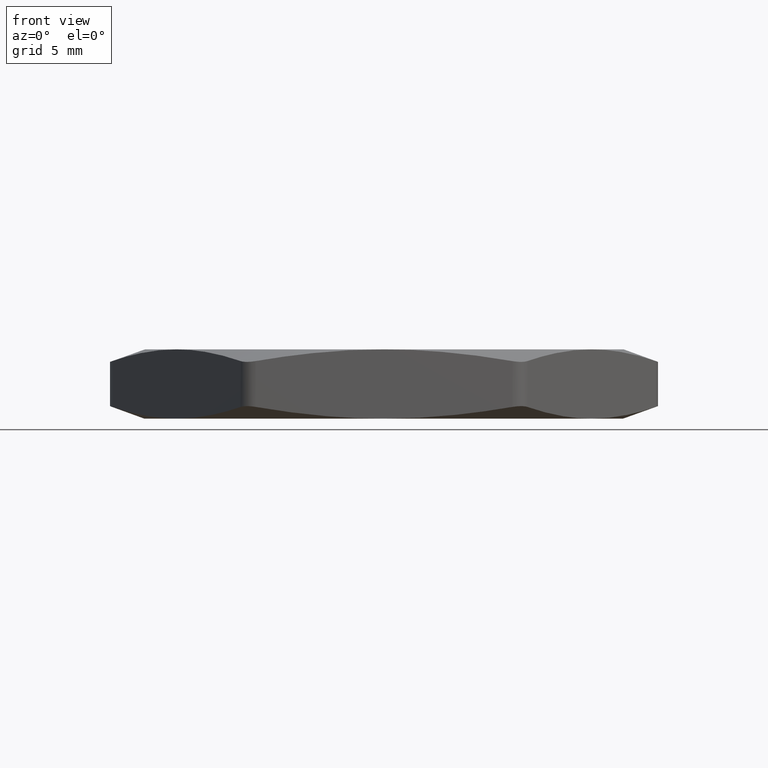
[diagram: clean part render]
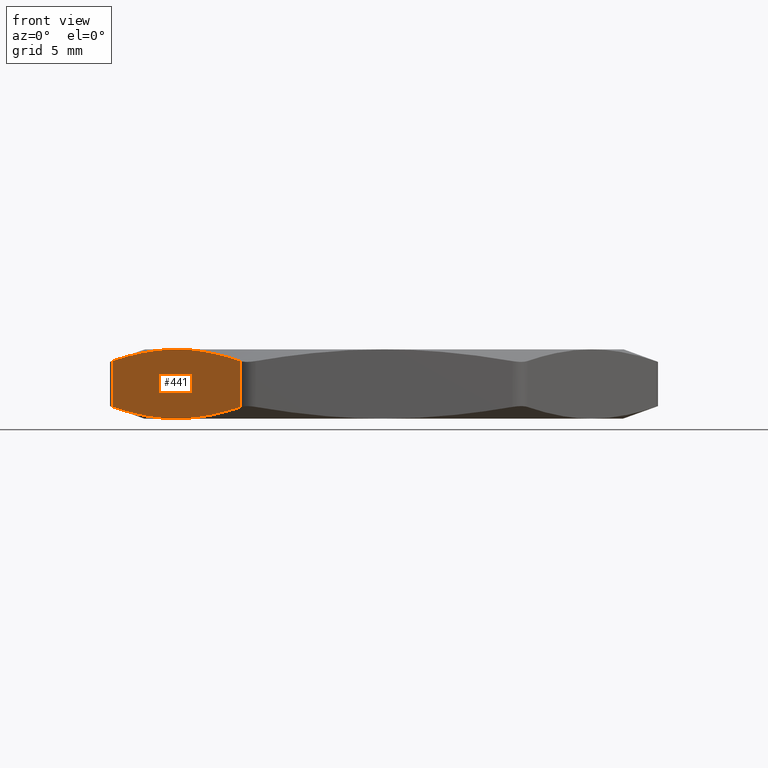
[diagram: same view with one face highlighted and labeled with its STEP entity id]
A machine part, front view. The second image highlights one B-rep face of the part: STEP entity #441.
In plain terms, the highlighted planar face has unit normal (0.866, 0.5, 0).
Its self-contained STEP definition (entity closure, byte-faithful):
#170 = VERTEX_POINT ( 'NONE', #2398 ) ;
#171 = VERTEX_POINT ( 'NONE', #2397 ) ;
#172 = ORIENTED_EDGE ( 'NONE', *, *, #173, .F. ) ;
#173 = EDGE_CURVE ( 'NONE', #174, #171, #2456, .T. ) ;
#174 = VERTEX_POINT ( 'NONE', #2455 ) ;
#186 = VERTEX_POINT ( 'NONE', #478 ) ;
#426 = EDGE_CURVE ( 'NONE', #170, #186, #940, .T. ) ;
#431 = ORIENTED_EDGE ( 'NONE', *, *, #432, .F. ) ;
#432 = EDGE_CURVE ( 'NONE', #433, #434, #930, .T. ) ;
#433 = VERTEX_POINT ( 'NONE', #976 ) ;
#434 = VERTEX_POINT ( 'NONE', #975 ) ;
#435 = ORIENTED_EDGE ( 'NONE', *, *, #436, .T. ) ;
#436 = EDGE_CURVE ( 'NONE', #433, #171, #974, .T. ) ;
#441 = ADVANCED_FACE ( 'NONE', ( #962 ), #965, .F. ) ;
#442 = EDGE_LOOP ( 'NONE', ( #431, #435, #172, #444, #446, #447 ) ) ;
#444 = ORIENTED_EDGE ( 'NONE', *, *, #445, .F. ) ;
#445 = EDGE_CURVE ( 'NONE', #170, #174, #952, .T. ) ;
#446 = ORIENTED_EDGE ( 'NONE', *, *, #426, .T. ) ;
#447 = ORIENTED_EDGE ( 'NONE', *, *, #450, .F. ) ;
#450 = EDGE_CURVE ( 'NONE', #434, #186, #995, .T. ) ;
#478 = CARTESIAN_POINT ( 'NONE',  ( -0.4705404693895449700, -0.01499999999999981700, 0.02030207602509548000 ) ) ;
#921 = CARTESIAN_POINT ( 'NONE',  ( -0.3408772214340414800, -0.2395833333333332600, -6.782933128800184000E-017 ) ) ;
#922 = CARTESIAN_POINT ( 'NONE',  ( -0.3223539002975411800, -0.2716666666666666100, 0.001834672312144915700 ) ) ;
#923 = CARTESIAN_POINT ( 'NONE',  ( -0.2853072580245401600, -0.3358333333333333700, 0.008810984912747467000 ) ) ;
#924 = CARTESIAN_POINT ( 'NONE',  ( -0.2667839368880397000, -0.3679166666666666700, 0.01393562675250454300 ) ) ;
#925 = CARTESIAN_POINT ( 'NONE',  ( -0.2482606157515391500, -0.3999999999999999700, 0.02030207602509548300 ) ) ;
#930 = B_SPLINE_CURVE_WITH_KNOTS ( 'NONE', 3,
 ( #925, #924, #923, #922, #921, #2433 ),
 .UNSPECIFIED., .F., .F.,
 ( 4, 2, 4 ),
 ( 2.309401076744511900E-007, 0.002823185081310351000, 0.005646139222513026800 ),
 .UNSPECIFIED. ) ;
#937 = DIRECTION ( 'NONE',  ( 0.0000000000000000000, 0.0000000000000000000, -1.000000000000000000 ) ) ;
#938 = VECTOR ( 'NONE', #937, 39.37007874015748100 ) ;
#939 = CARTESIAN_POINT ( 'NONE',  ( -0.4705404693895449700, -0.01499999999999983300, 0.1200000000000000000 ) ) ;
#940 = LINE ( 'NONE', #939, #938 ) ;
#952 = B_SPLINE_CURVE_WITH_KNOTS ( 'NONE', 3,
 ( #1006, #1005, #1004, #1003, #1002, #1001 ),
 .UNSPECIFIED., .F., .F.,
 ( 4, 2, 4 ),
 ( 2.309401076758707400E-007, 0.002823185081310350600, 0.005646139222513025900 ),
 .UNSPECIFIED. ) ;
#953 = DIRECTION ( 'NONE',  ( -0.4999999999999997200, 0.8660254037844388200, 0.0000000000000000000 ) ) ;
#954 = DIRECTION ( 'NONE',  ( 0.8660254037844388200, 0.4999999999999997200, 0.0000000000000000000 ) ) ;
#955 = AXIS2_PLACEMENT_3D ( 'NONE', #963, #954, #953 ) ;
#962 = FACE_OUTER_BOUND ( 'NONE', #442, .T. ) ;
#963 = CARTESIAN_POINT ( 'NONE',  ( -0.4792007234273893400, 1.346080122750627200E-016, 0.1200000000000000000 ) ) ;
#965 = PLANE ( 'NONE',  #955 ) ;
#971 = DIRECTION ( 'NONE',  ( 0.0000000000000000000, 0.0000000000000000000, 1.000000000000000000 ) ) ;
#972 = VECTOR ( 'NONE', #971, 39.37007874015748100 ) ;
#973 = CARTESIAN_POINT ( 'NONE',  ( -0.2482606157515391800, -0.3999999999999999700, 0.1200000000000000000 ) ) ;
#974 = LINE ( 'NONE', #973, #972 ) ;
#975 = CARTESIAN_POINT ( 'NONE',  ( -0.3594005425705422100, -0.2074999999999999600, 0.0000000000000000000 ) ) ;
#976 = CARTESIAN_POINT ( 'NONE',  ( -0.2482606157515391500, -0.3999999999999999700, 0.02030207602509548300 ) ) ;
#987 = CARTESIAN_POINT ( 'NONE',  ( -0.4705404693895449700, -0.01499999999999981700, 0.02030207602509548000 ) ) ;
#988 = CARTESIAN_POINT ( 'NONE',  ( -0.4520171482530444500, -0.04708333333333326200, 0.01393562675250450600 ) ) ;
#989 = CARTESIAN_POINT ( 'NONE',  ( -0.4334938271165439400, -0.07916666666666652400, 0.008810984912747449700 ) ) ;
#990 = CARTESIAN_POINT ( 'NONE',  ( -0.3964471848435430800, -0.1433333333333332300, 0.001834672312144897900 ) ) ;
#991 = CARTESIAN_POINT ( 'NONE',  ( -0.3779238637070425600, -0.1754166666666665000, -6.842959085692220600E-017 ) ) ;
#992 = CARTESIAN_POINT ( 'NONE',  ( -0.3594005425705422100, -0.2074999999999999600, 0.0000000000000000000 ) ) ;
#995 = B_SPLINE_CURVE_WITH_KNOTS ( 'NONE', 3,
 ( #992, #991, #990, #989, #988, #987 ),
 .UNSPECIFIED., .F., .F.,
 ( 4, 2, 4 ),
 ( 0.005646139222513026800, 0.008469093363715700400, 0.01129204750491837600 ),
 .UNSPECIFIED. ) ;
#1001 = CARTESIAN_POINT ( 'NONE',  ( -0.3594005425705422100, -0.2074999999999999300, 0.1200000000000000000 ) ) ;
#1002 = CARTESIAN_POINT ( 'NONE',  ( -0.3779238637070426200, -0.1754166666666665800, 0.1200000000000000600 ) ) ;
#1003 = CARTESIAN_POINT ( 'NONE',  ( -0.3964471848435430200, -0.1433333333333331700, 0.1181653276878550800 ) ) ;
#1004 = CARTESIAN_POINT ( 'NONE',  ( -0.4334938271165439900, -0.07916666666666651000, 0.1111890150872525500 ) ) ;
#1005 = CARTESIAN_POINT ( 'NONE',  ( -0.4520171482530444000, -0.04708333333333315800, 0.1060643732474954700 ) ) ;
#1006 = CARTESIAN_POINT ( 'NONE',  ( -0.4705404693895449700, -0.01499999999999983800, 0.09969792397490452600 ) ) ;
#2397 = CARTESIAN_POINT ( 'NONE',  ( -0.2482606157515391800, -0.3999999999999999700, 0.09969792397490451200 ) ) ;
#2398 = CARTESIAN_POINT ( 'NONE',  ( -0.4705404693895449700, -0.01499999999999983800, 0.09969792397490452600 ) ) ;
#2433 = CARTESIAN_POINT ( 'NONE',  ( -0.3594005425705422100, -0.2074999999999999600, 0.0000000000000000000 ) ) ;
#2447 = CARTESIAN_POINT ( 'NONE',  ( -0.2482606157515391800, -0.3999999999999999700, 0.09969792397490451200 ) ) ;
#2448 = CARTESIAN_POINT ( 'NONE',  ( -0.2667839368880397000, -0.3679166666666665000, 0.1060643732474954400 ) ) ;
#2449 = CARTESIAN_POINT ( 'NONE',  ( -0.2853072580245401000, -0.3358333333333332600, 0.1111890150872524900 ) ) ;
#2450 = CARTESIAN_POINT ( 'NONE',  ( -0.3223539002975411800, -0.2716666666666666700, 0.1181653276878550900 ) ) ;
#2451 = CARTESIAN_POINT ( 'NONE',  ( -0.3408772214340415900, -0.2395833333333331800, 0.1200000000000001100 ) ) ;
#2452 = CARTESIAN_POINT ( 'NONE',  ( -0.3594005425705422100, -0.2074999999999999300, 0.1200000000000000000 ) ) ;
#2455 = CARTESIAN_POINT ( 'NONE',  ( -0.3594005425705422100, -0.2074999999999999300, 0.1200000000000000000 ) ) ;
#2456 = B_SPLINE_CURVE_WITH_KNOTS ( 'NONE', 3,
 ( #2452, #2451, #2450, #2449, #2448, #2447 ),
 .UNSPECIFIED., .F., .F.,
 ( 4, 2, 4 ),
 ( 0.005646139222513025900, 0.008469093363715700400, 0.01129204750491837700 ),
 .UNSPECIFIED. ) ;